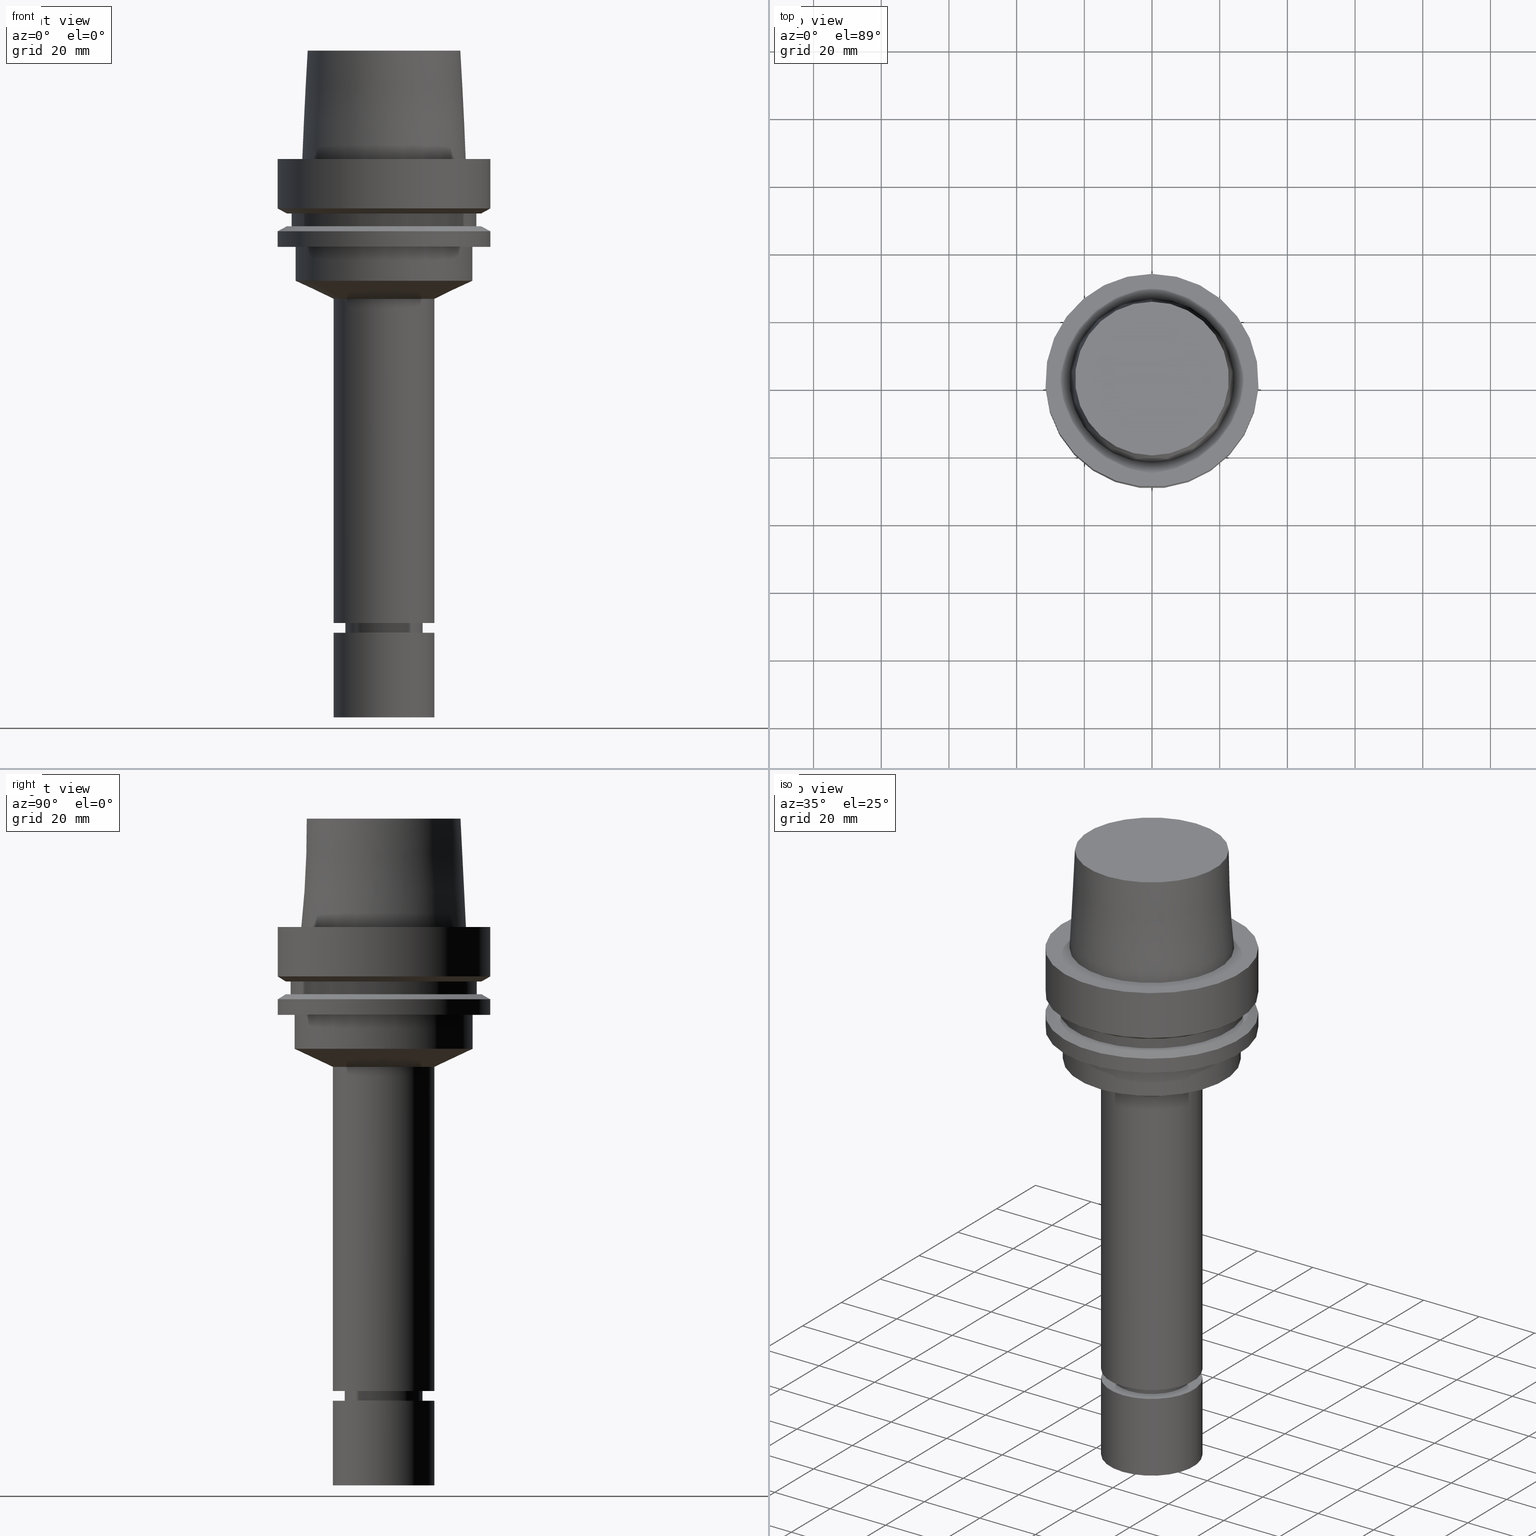
[diagram: canonical four-view strip — front | top / right | iso, engineering-drawing reading convention]
A machine part, canonical four-view strip (front | top / right | iso — engineering-drawing reading convention). The complete STEP part file that produces these views, byte-faithful:
ISO-10303-21;
HEADER;
FILE_DESCRIPTION((''),'1');
FILE_NAME('U:/Translate/02_3D_Field-HP\X2\FF71FF6FFF8CFF9F5916\X0\2013/02_Step_Field-HP\X2\FF71FF6FFF8CFF9F5916\X0\2013/HSK-A63-MEGAER16-165NL.stp','2016-06-21T23:59:58',(''),(''),'Spatial Interop R21 SP3','Kubotek KeyCreator 2011 V10.0.2 (22737)',' ');
FILE_SCHEMA(('automotive_design'));
ENDSEC;
DATA;
#1=MECHANICAL_DESIGN_GEOMETRIC_PRESENTATION_REPRESENTATION(' ',(#14,#15,#16,#17,#18,#19,#20,#21,#22,#23,#24,#25,#26,#27,#28,#29,#30,#31,#32,#33,#34,#35,#36,#37,#38,#39,#40,#41,#42,#43,#44,#45,#46,#47,#48,#49,#50,#51,#52,#53,#54,#55,#56,#57,#58,#59),#10);
#2=PRODUCT_DEFINITION_CONTEXT('',#60,'design');
#3=APPLICATION_PROTOCOL_DEFINITION('INTERNATIONAL STANDARD','automotive_design',1994,#60);
#4=PRODUCT_CATEGORY_RELATIONSHIP('NONE','NONE',#61,#62);
#5=SHAPE_DEFINITION_REPRESENTATION(#63,#64);
#6=PRODUCT_DEFINITION_CONTEXT('',#65,'design');
#7=APPLICATION_PROTOCOL_DEFINITION('INTERNATIONAL STANDARD','automotive_design',1994,#65);
#8=PRODUCT_CATEGORY_RELATIONSHIP('NONE','NONE',#66,#67);
#9=SHAPE_DEFINITION_REPRESENTATION(#68,#69);
#10= (GEOMETRIC_REPRESENTATION_CONTEXT(3)GLOBAL_UNCERTAINTY_ASSIGNED_CONTEXT((#72))GLOBAL_UNIT_ASSIGNED_CONTEXT((#74,#75,#76))REPRESENTATION_CONTEXT('NONE','WORKSPACE'));
#14=STYLED_ITEM('',(#78,#79),#80);
#15=STYLED_ITEM('',(#81,#82),#83);
#16=STYLED_ITEM('',(#84,#85),#86);
#17=STYLED_ITEM('',(#87,#88),#89);
#18=STYLED_ITEM('',(#90),#91);
#19=STYLED_ITEM('',(#92,#93),#94);
#20=STYLED_ITEM('',(#95,#96),#97);
#21=STYLED_ITEM('',(#98,#99),#100);
#22=STYLED_ITEM('',(#101,#102),#103);
#23=STYLED_ITEM('',(#104),#105);
#24=STYLED_ITEM('',(#106,#107),#108);
#25=STYLED_ITEM('',(#109),#110);
#26=STYLED_ITEM('',(#111,#112),#113);
#27=STYLED_ITEM('',(#114),#115);
#28=STYLED_ITEM('',(#116,#117),#118);
#29=STYLED_ITEM('',(#119,#120),#121);
#30=STYLED_ITEM('',(#122),#123);
#31=STYLED_ITEM('',(#124,#125),#126);
#32=STYLED_ITEM('',(#127),#128);
#33=STYLED_ITEM('',(#129),#130);
#34=STYLED_ITEM('',(#131),#132);
#35=STYLED_ITEM('',(#133,#134),#135);
#36=STYLED_ITEM('',(#136),#137);
#37=STYLED_ITEM('',(#138,#139),#140);
#38=STYLED_ITEM('',(#141,#142),#143);
#39=STYLED_ITEM('',(#144),#145);
#40=STYLED_ITEM('',(#146,#147),#148);
#41=STYLED_ITEM('',(#149,#150),#151);
#42=STYLED_ITEM('',(#152),#153);
#43=STYLED_ITEM('',(#154),#155);
#44=STYLED_ITEM('',(#156),#157);
#45=STYLED_ITEM('',(#158),#159);
#46=STYLED_ITEM('',(#160,#161),#162);
#47=STYLED_ITEM('',(#163),#164);
#48=STYLED_ITEM('',(#165),#166);
#49=STYLED_ITEM('',(#167,#168),#169);
#50=STYLED_ITEM('',(#170,#171),#172);
#51=STYLED_ITEM('',(#173),#174);
#52=STYLED_ITEM('',(#175),#176);
#53=STYLED_ITEM('',(#177),#178);
#54=STYLED_ITEM('',(#179,#180),#181);
#55=STYLED_ITEM('',(#182),#183);
#56=STYLED_ITEM('',(#184),#185);
#57=STYLED_ITEM('',(#186,#187),#188);
#58=STYLED_ITEM('',(#189,#190),#191);
#59=STYLED_ITEM('',(#192,#193),#194);
#60=APPLICATION_CONTEXT(' ');
#61=PRODUCT_CATEGORY('part','NONE');
#62=PRODUCT_RELATED_PRODUCT_CATEGORY('detail',' ',(#195));
#63=PRODUCT_DEFINITION_SHAPE('NONE','NONE',#196);
#64=ADVANCED_BREP_SHAPE_REPRESENTATION('Unnamed[1]',(#181,#197),#10);
#65=APPLICATION_CONTEXT(' ');
#66=PRODUCT_CATEGORY('part','NONE');
#67=PRODUCT_RELATED_PRODUCT_CATEGORY('detail',' ',(#198));
#68=PRODUCT_DEFINITION_SHAPE('NONE','NONE',#199);
#69=ADVANCED_BREP_SHAPE_REPRESENTATION('Unnamed[1]',(#94,#200),#10);
#72=UNCERTAINTY_MEASURE_WITH_UNIT(LENGTH_MEASURE(1.0E-006),#74,'','');
#74= (CONVERSION_BASED_UNIT('MILLIMETRE',#203)LENGTH_UNIT()NAMED_UNIT(#206));
#75= (NAMED_UNIT(#208)PLANE_ANGLE_UNIT()SI_UNIT($,.RADIAN.));
#76= (NAMED_UNIT(#208)SOLID_ANGLE_UNIT()SI_UNIT($,.STERADIAN.));
#78=PRESENTATION_STYLE_ASSIGNMENT((#214));
#79=PRESENTATION_STYLE_ASSIGNMENT((#215));
#80=ADVANCED_FACE('Unnamed[1]',(#216,#217),#218,.T.);
#81=PRESENTATION_STYLE_ASSIGNMENT((#219));
#82=PRESENTATION_STYLE_ASSIGNMENT((#220));
#83=ADVANCED_FACE('Unnamed[1]',(#221,#222),#223,.T.);
#84=PRESENTATION_STYLE_ASSIGNMENT((#224));
#85=PRESENTATION_STYLE_ASSIGNMENT((#225));
#86=ADVANCED_FACE('Unnamed[1]',(#226,#227),#228,.T.);
#87=PRESENTATION_STYLE_ASSIGNMENT((#229));
#88=PRESENTATION_STYLE_ASSIGNMENT((#230));
#89=ADVANCED_FACE('Unnamed[1]',(#231,#232),#233,.T.);
#90=PRESENTATION_STYLE_ASSIGNMENT((#234));
#91=EDGE_CURVE('Unnamed[1]',#235,#235,#236,.T.);
#92=PRESENTATION_STYLE_ASSIGNMENT((#237));
#93=PRESENTATION_STYLE_ASSIGNMENT((#238));
#94=MANIFOLD_SOLID_BREP('Unnamed[1]',#239);
#95=PRESENTATION_STYLE_ASSIGNMENT((#240));
#96=PRESENTATION_STYLE_ASSIGNMENT((#241));
#97=ADVANCED_FACE('Unnamed[1]',(#242,#243),#244,.T.);
#98=PRESENTATION_STYLE_ASSIGNMENT((#245));
#99=PRESENTATION_STYLE_ASSIGNMENT((#246));
#100=ADVANCED_FACE('Unnamed[1]',(#247,#248),#249,.T.);
#101=PRESENTATION_STYLE_ASSIGNMENT((#250));
#102=PRESENTATION_STYLE_ASSIGNMENT((#251));
#103=ADVANCED_FACE('Unnamed[1]',(#252,#253),#254,.T.);
#104=PRESENTATION_STYLE_ASSIGNMENT((#255));
#105=EDGE_CURVE('Unnamed[1]',#256,#256,#257,.T.);
#106=PRESENTATION_STYLE_ASSIGNMENT((#258));
#107=PRESENTATION_STYLE_ASSIGNMENT((#259));
#108=ADVANCED_FACE('Unnamed[1]',(#260,#261),#262,.T.);
#109=PRESENTATION_STYLE_ASSIGNMENT((#263));
#110=EDGE_CURVE('Unnamed[1]',#264,#264,#265,.T.);
#111=PRESENTATION_STYLE_ASSIGNMENT((#266));
#112=PRESENTATION_STYLE_ASSIGNMENT((#267));
#113=ADVANCED_FACE('Unnamed[1]',(#268),#269,.T.);
#114=PRESENTATION_STYLE_ASSIGNMENT((#270));
#115=EDGE_CURVE('Unnamed[1]',#271,#271,#272,.T.);
#116=PRESENTATION_STYLE_ASSIGNMENT((#273));
#117=PRESENTATION_STYLE_ASSIGNMENT((#274));
#118=ADVANCED_FACE('Unnamed[1]',(#275,#276),#277,.T.);
#119=PRESENTATION_STYLE_ASSIGNMENT((#278));
#120=PRESENTATION_STYLE_ASSIGNMENT((#279));
#121=ADVANCED_FACE('Unnamed[1]',(#280,#281),#282,.T.);
#122=PRESENTATION_STYLE_ASSIGNMENT((#283));
#123=EDGE_CURVE('Unnamed[1]',#284,#284,#285,.T.);
#124=PRESENTATION_STYLE_ASSIGNMENT((#286));
#125=PRESENTATION_STYLE_ASSIGNMENT((#287));
#126=ADVANCED_FACE('Unnamed[1]',(#288,#289),#290,.T.);
#127=PRESENTATION_STYLE_ASSIGNMENT((#291));
#128=EDGE_CURVE('Unnamed[1]',#292,#292,#293,.T.);
#129=PRESENTATION_STYLE_ASSIGNMENT((#294));
#130=EDGE_CURVE('Unnamed[1]',#295,#295,#296,.T.);
#131=PRESENTATION_STYLE_ASSIGNMENT((#297));
#132=EDGE_CURVE('Unnamed[1]',#298,#298,#299,.T.);
#133=PRESENTATION_STYLE_ASSIGNMENT((#300));
#134=PRESENTATION_STYLE_ASSIGNMENT((#301));
#135=ADVANCED_FACE('Unnamed[1]',(#302,#303),#304,.T.);
#136=PRESENTATION_STYLE_ASSIGNMENT((#305));
#137=EDGE_CURVE('Unnamed[1]',#306,#306,#307,.T.);
#138=PRESENTATION_STYLE_ASSIGNMENT((#308));
#139=PRESENTATION_STYLE_ASSIGNMENT((#309));
#140=ADVANCED_FACE('Unnamed[1]',(#310,#311),#312,.T.);
#141=PRESENTATION_STYLE_ASSIGNMENT((#313));
#142=PRESENTATION_STYLE_ASSIGNMENT((#314));
#143=ADVANCED_FACE('Unnamed[1]',(#315,#316),#317,.T.);
#144=PRESENTATION_STYLE_ASSIGNMENT((#318));
#145=EDGE_CURVE('Unnamed[1]',#319,#319,#320,.T.);
#146=PRESENTATION_STYLE_ASSIGNMENT((#321));
#147=PRESENTATION_STYLE_ASSIGNMENT((#322));
#148=ADVANCED_FACE('Unnamed[1]',(#323,#324),#325,.T.);
#149=PRESENTATION_STYLE_ASSIGNMENT((#326));
#150=PRESENTATION_STYLE_ASSIGNMENT((#327));
#151=ADVANCED_FACE('Unnamed[1]',(#328,#329),#330,.T.);
#152=PRESENTATION_STYLE_ASSIGNMENT((#331));
#153=EDGE_CURVE('Unnamed[1]',#332,#332,#333,.T.);
#154=PRESENTATION_STYLE_ASSIGNMENT((#334));
#155=EDGE_CURVE('Unnamed[1]',#335,#335,#336,.T.);
#156=PRESENTATION_STYLE_ASSIGNMENT((#337));
#157=EDGE_CURVE('Unnamed[1]',#338,#338,#339,.T.);
#158=PRESENTATION_STYLE_ASSIGNMENT((#340));
#159=EDGE_CURVE('Unnamed[1]',#341,#341,#342,.T.);
#160=PRESENTATION_STYLE_ASSIGNMENT((#343));
#161=PRESENTATION_STYLE_ASSIGNMENT((#344));
#162=ADVANCED_FACE('Unnamed[1]',(#345),#346,.T.);
#163=PRESENTATION_STYLE_ASSIGNMENT((#347));
#164=EDGE_CURVE('Unnamed[1]',#348,#348,#349,.T.);
#165=PRESENTATION_STYLE_ASSIGNMENT((#350));
#166=EDGE_CURVE('Unnamed[1]',#351,#351,#352,.T.);
#167=PRESENTATION_STYLE_ASSIGNMENT((#353));
#168=PRESENTATION_STYLE_ASSIGNMENT((#354));
#169=ADVANCED_FACE('Unnamed[1]',(#355),#356,.T.);
#170=PRESENTATION_STYLE_ASSIGNMENT((#357));
#171=PRESENTATION_STYLE_ASSIGNMENT((#358));
#172=ADVANCED_FACE('Unnamed[1]',(#359,#360),#361,.T.);
#173=PRESENTATION_STYLE_ASSIGNMENT((#362));
#174=EDGE_CURVE('Unnamed[1]',#363,#363,#364,.T.);
#175=PRESENTATION_STYLE_ASSIGNMENT((#365));
#176=EDGE_CURVE('Unnamed[1]',#366,#366,#367,.T.);
#177=PRESENTATION_STYLE_ASSIGNMENT((#368));
#178=EDGE_CURVE('Unnamed[1]',#369,#369,#370,.T.);
#179=PRESENTATION_STYLE_ASSIGNMENT((#371));
#180=PRESENTATION_STYLE_ASSIGNMENT((#372));
#181=MANIFOLD_SOLID_BREP('Unnamed[1]',#373);
#182=PRESENTATION_STYLE_ASSIGNMENT((#374));
#183=EDGE_CURVE('Unnamed[1]',#375,#375,#376,.T.);
#184=PRESENTATION_STYLE_ASSIGNMENT((#377));
#185=EDGE_CURVE('Unnamed[1]',#378,#378,#379,.T.);
#186=PRESENTATION_STYLE_ASSIGNMENT((#380));
#187=PRESENTATION_STYLE_ASSIGNMENT((#381));
#188=ADVANCED_FACE('Unnamed[1]',(#382),#383,.T.);
#189=PRESENTATION_STYLE_ASSIGNMENT((#384));
#190=PRESENTATION_STYLE_ASSIGNMENT((#385));
#191=ADVANCED_FACE('Unnamed[1]',(#386,#387),#388,.T.);
#192=PRESENTATION_STYLE_ASSIGNMENT((#389));
#193=PRESENTATION_STYLE_ASSIGNMENT((#390));
#194=ADVANCED_FACE('Unnamed[1]',(#391,#392),#393,.T.);
#195=PRODUCT('Unnamed[1]','Unnamed[1]','PART-Unnamed[1]-DESC',(#394));
#196=PRODUCT_DEFINITION('NONE','NONE',#395,#2);
#197=AXIS2_PLACEMENT_3D('',#396,#397,#398);
#198=PRODUCT('Unnamed[1]','Unnamed[1]','PART-Unnamed[1]-DESC',(#399));
#199=PRODUCT_DEFINITION('NONE','NONE',#400,#6);
#200=AXIS2_PLACEMENT_3D('',#401,#402,#403);
#203=LENGTH_MEASURE_WITH_UNIT(LENGTH_MEASURE(1.0),#404);
#206=DIMENSIONAL_EXPONENTS(1.0,0.0,0.0,0.0,0.0,0.0,0.0);
#208=DIMENSIONAL_EXPONENTS(0.0,0.0,0.0,0.0,0.0,0.0,0.0);
#214=SURFACE_STYLE_USAGE(.BOTH.,#405);
#215=CURVE_STYLE('',#406,POSITIVE_LENGTH_MEASURE(1000.0),#407);
#216=FACE_BOUND('',#408,.T.);
#217=FACE_BOUND('',#409,.T.);
#218=CONICAL_SURFACE('',#410,30.1987976320959,1.04719755119657);
#219=SURFACE_STYLE_USAGE(.BOTH.,#411);
#220=CURVE_STYLE('',#412,POSITIVE_LENGTH_MEASURE(1000.0),#413);
#221=FACE_OUTER_BOUND('',#414,.T.);
#222=FACE_BOUND('',#415,.T.);
#223=PLANE('',#416);
#224=SURFACE_STYLE_USAGE(.BOTH.,#417);
#225=CURVE_STYLE('',#418,POSITIVE_LENGTH_MEASURE(1000.0),#419);
#226=FACE_BOUND('',#420,.T.);
#227=FACE_BOUND('',#421,.T.);
#228=CONICAL_SURFACE('',#422,30.1987976320959,1.04719755119657);
#229=SURFACE_STYLE_USAGE(.BOTH.,#423);
#230=CURVE_STYLE('',#424,POSITIVE_LENGTH_MEASURE(1000.0),#425);
#231=FACE_BOUND('',#426,.T.);
#232=FACE_BOUND('',#427,.T.);
#233=CYLINDRICAL_SURFACE('',#428,15.0);
#234=CURVE_STYLE('',#429,POSITIVE_LENGTH_MEASURE(1000.0),#430);
#235=VERTEX_POINT('',#431);
#236=CIRCLE('',#432,11.0000000000003);
#237=SURFACE_STYLE_USAGE(.BOTH.,#433);
#238=CURVE_STYLE('',#434,POSITIVE_LENGTH_MEASURE(1000.0),#435);
#239=CLOSED_SHELL('',(#162,#169,#89));
#240=SURFACE_STYLE_USAGE(.BOTH.,#436);
#241=CURVE_STYLE('',#437,POSITIVE_LENGTH_MEASURE(1000.0),#438);
#242=FACE_BOUND('',#439,.T.);
#243=FACE_BOUND('',#440,.T.);
#244=CYLINDRICAL_SURFACE('',#441,26.3);
#245=SURFACE_STYLE_USAGE(.BOTH.,#442);
#246=CURVE_STYLE('',#443,POSITIVE_LENGTH_MEASURE(1000.0),#444);
#247=FACE_BOUND('',#445,.T.);
#248=FACE_OUTER_BOUND('',#446,.T.);
#249=PLANE('',#447);
#250=SURFACE_STYLE_USAGE(.BOTH.,#448);
#251=CURVE_STYLE('',#449,POSITIVE_LENGTH_MEASURE(1000.0),#450);
#252=FACE_BOUND('',#451,.T.);
#253=FACE_BOUND('',#452,.T.);
#254=CONICAL_SURFACE('',#453,10.4499999999999,0.523598775598217);
#255=CURVE_STYLE('',#454,POSITIVE_LENGTH_MEASURE(1000.0),#455);
#256=VERTEX_POINT('',#456);
#257=CIRCLE('',#457,22.715);
#258=SURFACE_STYLE_USAGE(.BOTH.,#458);
#259=CURVE_STYLE('',#459,POSITIVE_LENGTH_MEASURE(1000.0),#460);
#260=FACE_BOUND('',#461,.T.);
#261=FACE_BOUND('',#462,.T.);
#262=CYLINDRICAL_SURFACE('',#463,31.4999999999999);
#263=CURVE_STYLE('',#464,POSITIVE_LENGTH_MEASURE(1000.0),#465);
#264=VERTEX_POINT('',#466);
#265=CIRCLE('',#467,26.3);
#266=SURFACE_STYLE_USAGE(.BOTH.,#468);
#267=CURVE_STYLE('',#469,POSITIVE_LENGTH_MEASURE(1000.0),#470);
#268=FACE_OUTER_BOUND('',#471,.T.);
#269=PLANE('',#472);
#270=CURVE_STYLE('',#473,POSITIVE_LENGTH_MEASURE(1000.0),#474);
#271=VERTEX_POINT('',#475);
#272=CIRCLE('',#476,15.0000000000001);
#273=SURFACE_STYLE_USAGE(.BOTH.,#477);
#274=CURVE_STYLE('',#478,POSITIVE_LENGTH_MEASURE(1000.0),#479);
#275=FACE_BOUND('',#480,.T.);
#276=FACE_BOUND('',#481,.T.);
#277=CONICAL_SURFACE('',#482,20.65,1.130073120606);
#278=SURFACE_STYLE_USAGE(.BOTH.,#483);
#279=CURVE_STYLE('',#484,POSITIVE_LENGTH_MEASURE(1000.0),#485);
#280=FACE_BOUND('',#486,.T.);
#281=FACE_BOUND('',#487,.T.);
#282=CYLINDRICAL_SURFACE('',#488,27.4999999999994);
#283=CURVE_STYLE('',#489,POSITIVE_LENGTH_MEASURE(1000.0),#490);
#284=VERTEX_POINT('',#491);
#285=CIRCLE('',#492,11.4999999999907);
#286=SURFACE_STYLE_USAGE(.BOTH.,#493);
#287=CURVE_STYLE('',#494,POSITIVE_LENGTH_MEASURE(1000.0),#495);
#288=FACE_BOUND('',#496,.T.);
#289=FACE_BOUND('',#497,.T.);
#290=CYLINDRICAL_SURFACE('',#498,11.0000000000001);
#291=CURVE_STYLE('',#499,POSITIVE_LENGTH_MEASURE(1000.0),#500);
#292=VERTEX_POINT('',#501);
#293=CIRCLE('',#502,31.5000000000001);
#294=CURVE_STYLE('',#503,POSITIVE_LENGTH_MEASURE(1000.0),#504);
#295=VERTEX_POINT('',#505);
#296=CIRCLE('',#506,31.4999999999998);
#297=CURVE_STYLE('',#507,POSITIVE_LENGTH_MEASURE(1000.0),#508);
#298=VERTEX_POINT('',#509);
#299=CIRCLE('',#510,28.8975952641919);
#300=SURFACE_STYLE_USAGE(.BOTH.,#511);
#301=CURVE_STYLE('',#512,POSITIVE_LENGTH_MEASURE(1000.0),#513);
#302=FACE_BOUND('',#514,.T.);
#303=FACE_BOUND('',#515,.T.);
#304=CONICAL_SURFACE('',#516,23.515,0.0499583957219433);
#305=CURVE_STYLE('',#517,POSITIVE_LENGTH_MEASURE(1000.0),#518);
#306=VERTEX_POINT('',#519);
#307=CIRCLE('',#520,31.5);
#308=SURFACE_STYLE_USAGE(.BOTH.,#521);
#309=CURVE_STYLE('',#522,POSITIVE_LENGTH_MEASURE(1000.0),#523);
#310=FACE_OUTER_BOUND('',#524,.T.);
#311=FACE_BOUND('',#525,.T.);
#312=PLANE('',#526);
#313=SURFACE_STYLE_USAGE(.BOTH.,#527);
#314=CURVE_STYLE('',#528,POSITIVE_LENGTH_MEASURE(1000.0),#529);
#315=FACE_BOUND('',#530,.T.);
#316=FACE_BOUND('',#531,.T.);
#317=CYLINDRICAL_SURFACE('',#532,15.0);
#318=CURVE_STYLE('',#533,POSITIVE_LENGTH_MEASURE(1000.0),#534);
#319=VERTEX_POINT('',#535);
#320=CIRCLE('',#536,26.3);
#321=SURFACE_STYLE_USAGE(.BOTH.,#537);
#322=CURVE_STYLE('',#538,POSITIVE_LENGTH_MEASURE(1000.0),#539);
#323=FACE_OUTER_BOUND('',#540,.T.);
#324=FACE_BOUND('',#541,.T.);
#325=PLANE('',#542);
#326=SURFACE_STYLE_USAGE(.BOTH.,#543);
#327=CURVE_STYLE('',#544,POSITIVE_LENGTH_MEASURE(1000.0),#545);
#328=FACE_BOUND('',#546,.T.);
#329=FACE_BOUND('',#547,.T.);
#330=CYLINDRICAL_SURFACE('',#548,31.5);
#331=CURVE_STYLE('',#549,POSITIVE_LENGTH_MEASURE(1000.0),#550);
#332=VERTEX_POINT('',#551);
#333=CIRCLE('',#552,9.89999999999962);
#334=CURVE_STYLE('',#553,POSITIVE_LENGTH_MEASURE(1000.0),#554);
#335=VERTEX_POINT('',#555);
#336=CIRCLE('',#556,11.5000000000021);
#337=CURVE_STYLE('',#557,POSITIVE_LENGTH_MEASURE(1000.0),#558);
#338=VERTEX_POINT('',#559);
#339=CIRCLE('',#560,28.8975952641919);
#340=CURVE_STYLE('',#561,POSITIVE_LENGTH_MEASURE(1000.0),#562);
#341=VERTEX_POINT('',#563);
#342=CIRCLE('',#564,27.5);
#343=SURFACE_STYLE_USAGE(.BOTH.,#565);
#344=CURVE_STYLE('',#566,POSITIVE_LENGTH_MEASURE(1000.0),#567);
#345=FACE_OUTER_BOUND('',#568,.T.);
#346=PLANE('',#569);
#347=CURVE_STYLE('',#570,POSITIVE_LENGTH_MEASURE(1000.0),#571);
#348=VERTEX_POINT('',#572);
#349=CIRCLE('',#573,15.0);
#350=CURVE_STYLE('',#574,POSITIVE_LENGTH_MEASURE(1000.0),#575);
#351=VERTEX_POINT('',#576);
#352=CIRCLE('',#577,10.9999999999999);
#353=SURFACE_STYLE_USAGE(.BOTH.,#578);
#354=CURVE_STYLE('',#579,POSITIVE_LENGTH_MEASURE(1000.0),#580);
#355=FACE_OUTER_BOUND('',#581,.T.);
#356=PLANE('',#582);
#357=SURFACE_STYLE_USAGE(.BOTH.,#583);
#358=CURVE_STYLE('',#584,POSITIVE_LENGTH_MEASURE(1000.0),#585);
#359=FACE_BOUND('',#586,.T.);
#360=FACE_BOUND('',#587,.T.);
#361=CYLINDRICAL_SURFACE('',#588,11.4999999999964);
#362=CURVE_STYLE('',#589,POSITIVE_LENGTH_MEASURE(1000.0),#590);
#363=VERTEX_POINT('',#591);
#364=CIRCLE('',#592,15.0);
#365=CURVE_STYLE('',#593,POSITIVE_LENGTH_MEASURE(1000.0),#594);
#366=VERTEX_POINT('',#595);
#367=CIRCLE('',#596,27.4999999999989);
#368=CURVE_STYLE('',#597,POSITIVE_LENGTH_MEASURE(1000.0),#598);
#369=VERTEX_POINT('',#599);
#370=CIRCLE('',#600,24.315);
#371=SURFACE_STYLE_USAGE(.BOTH.,#601);
#372=CURVE_STYLE('',#602,POSITIVE_LENGTH_MEASURE(1000.0),#603);
#373=CLOSED_SHELL('',(#188,#103,#126,#191,#172,#148,#143,#118,#97,#83,#108,#86,#194,#121,#140,#80,#151,#100,#135,#113));
#374=CURVE_STYLE('',#604,POSITIVE_LENGTH_MEASURE(1000.0),#605);
#375=VERTEX_POINT('',#606);
#376=CIRCLE('',#607,15.0);
#377=CURVE_STYLE('',#608,POSITIVE_LENGTH_MEASURE(1000.0),#609);
#378=VERTEX_POINT('',#610);
#379=CIRCLE('',#611,31.5);
#380=SURFACE_STYLE_USAGE(.BOTH.,#612);
#381=CURVE_STYLE('',#613,POSITIVE_LENGTH_MEASURE(1000.0),#614);
#382=FACE_OUTER_BOUND('',#615,.T.);
#383=PLANE('',#616);
#384=SURFACE_STYLE_USAGE(.BOTH.,#617);
#385=CURVE_STYLE('',#618,POSITIVE_LENGTH_MEASURE(1000.0),#619);
#386=FACE_BOUND('',#620,.T.);
#387=FACE_BOUND('',#621,.T.);
#388=CONICAL_SURFACE('',#622,11.250000000001,0.766162649701789);
#389=SURFACE_STYLE_USAGE(.BOTH.,#623);
#390=CURVE_STYLE('',#624,POSITIVE_LENGTH_MEASURE(1000.0),#625);
#391=FACE_BOUND('',#626,.T.);
#392=FACE_OUTER_BOUND('',#627,.T.);
#393=PLANE('',#628);
#394=PRODUCT_CONTEXT('',#60,'mechanical');
#395=PRODUCT_DEFINITION_FORMATION_WITH_SPECIFIED_SOURCE(' ','NONE',#195,.NOT_KNOWN.);
#396=CARTESIAN_POINT('',(0.0,0.0,0.0));
#397=DIRECTION('',(0.0,0.0,1.0));
#398=DIRECTION('',(1.0,0.0,0.0));
#399=PRODUCT_CONTEXT('',#65,'mechanical');
#400=PRODUCT_DEFINITION_FORMATION_WITH_SPECIFIED_SOURCE(' ','NONE',#198,.NOT_KNOWN.);
#401=CARTESIAN_POINT('',(0.0,0.0,0.0));
#402=DIRECTION('',(0.0,0.0,1.0));
#403=DIRECTION('',(1.0,0.0,0.0));
#404= (NAMED_UNIT(#206)LENGTH_UNIT()SI_UNIT(.MILLI.,.METRE.));
#405=SURFACE_SIDE_STYLE('',(#630));
#406=DRAUGHTING_PRE_DEFINED_CURVE_FONT('continuous');
#407=COLOUR_RGB('',0.0,1.0,0.0);
#408=EDGE_LOOP('',(#631));
#409=EDGE_LOOP('',(#632));
#410=AXIS2_PLACEMENT_3D('',#633,#634,#635);
#411=SURFACE_SIDE_STYLE('',(#636));
#412=DRAUGHTING_PRE_DEFINED_CURVE_FONT('continuous');
#413=COLOUR_RGB('',0.0,1.0,0.0);
#414=EDGE_LOOP('',(#637));
#415=EDGE_LOOP('',(#638));
#416=AXIS2_PLACEMENT_3D('',#639,#640,#641);
#417=SURFACE_SIDE_STYLE('',(#642));
#418=DRAUGHTING_PRE_DEFINED_CURVE_FONT('continuous');
#419=COLOUR_RGB('',0.0,1.0,0.0);
#420=EDGE_LOOP('',(#643));
#421=EDGE_LOOP('',(#644));
#422=AXIS2_PLACEMENT_3D('',#645,#646,#647);
#423=SURFACE_SIDE_STYLE('',(#648));
#424=DRAUGHTING_PRE_DEFINED_CURVE_FONT('continuous');
#425=COLOUR_RGB('',0.0,1.0,0.0);
#426=EDGE_LOOP('',(#649));
#427=EDGE_LOOP('',(#650));
#428=AXIS2_PLACEMENT_3D('',#651,#652,#653);
#429=DRAUGHTING_PRE_DEFINED_CURVE_FONT('continuous');
#430=COLOUR_RGB('',0.0,1.0,0.0);
#431=CARTESIAN_POINT('',(9.44782822508095E-015,11.0000000000003,-154.294744111672));
#432=AXIS2_PLACEMENT_3D('',#654,#655,#656);
#433=SURFACE_SIDE_STYLE('',(#657));
#434=DRAUGHTING_PRE_DEFINED_CURVE_FONT('continuous');
#435=COLOUR_RGB('',0.0,1.0,0.0);
#436=SURFACE_SIDE_STYLE('',(#658));
#437=DRAUGHTING_PRE_DEFINED_CURVE_FONT('continuous');
#438=COLOUR_RGB('',0.0,1.0,0.0);
#439=EDGE_LOOP('',(#659));
#440=EDGE_LOOP('',(#660));
#441=AXIS2_PLACEMENT_3D('',#661,#662,#663);
#442=SURFACE_SIDE_STYLE('',(#664));
#443=DRAUGHTING_PRE_DEFINED_CURVE_FONT('continuous');
#444=COLOUR_RGB('',0.0,1.0,0.0);
#445=EDGE_LOOP('',(#665));
#446=EDGE_LOOP('',(#666));
#447=AXIS2_PLACEMENT_3D('',#667,#668,#669);
#448=SURFACE_SIDE_STYLE('',(#670));
#449=DRAUGHTING_PRE_DEFINED_CURVE_FONT('continuous');
#450=COLOUR_RGB('',0.0,1.0,0.0);
#451=EDGE_LOOP('',(#671));
#452=EDGE_LOOP('',(#672));
#453=AXIS2_PLACEMENT_3D('',#673,#674,#675);
#454=DRAUGHTING_PRE_DEFINED_CURVE_FONT('continuous');
#455=COLOUR_RGB('',0.0,1.0,0.0);
#456=CARTESIAN_POINT('',(-1.95943487863576E-015,22.715,32.0));
#457=AXIS2_PLACEMENT_3D('',#676,#677,#678);
#458=SURFACE_SIDE_STYLE('',(#679));
#459=DRAUGHTING_PRE_DEFINED_CURVE_FONT('continuous');
#460=COLOUR_RGB('',0.0,1.0,0.0);
#461=EDGE_LOOP('',(#680));
#462=EDGE_LOOP('',(#681));
#463=AXIS2_PLACEMENT_3D('',#682,#683,#684);
#464=DRAUGHTING_PRE_DEFINED_CURVE_FONT('continuous');
#465=COLOUR_RGB('',0.0,1.0,0.0);
#466=CARTESIAN_POINT('',(2.20436423866976E-015,26.3,-36.0000000033401));
#467=AXIS2_PLACEMENT_3D('',#685,#686,#687);
#468=SURFACE_SIDE_STYLE('',(#688));
#469=DRAUGHTING_PRE_DEFINED_CURVE_FONT('continuous');
#470=COLOUR_RGB('',0.0,1.0,0.0);
#471=EDGE_LOOP('',(#689));
#472=AXIS2_PLACEMENT_3D('',#690,#691,#692);
#473=DRAUGHTING_PRE_DEFINED_CURVE_FONT('continuous');
#474=COLOUR_RGB('',0.0,1.0,0.0);
#475=CARTESIAN_POINT('',(8.57252759403147E-015,15.0000000000001,-140.0));
#476=AXIS2_PLACEMENT_3D('',#693,#694,#695);
#477=SURFACE_SIDE_STYLE('',(#696));
#478=DRAUGHTING_PRE_DEFINED_CURVE_FONT('continuous');
#479=COLOUR_RGB('',0.0,1.0,0.0);
#480=EDGE_LOOP('',(#697));
#481=EDGE_LOOP('',(#698));
#482=AXIS2_PLACEMENT_3D('',#699,#700,#701);
#483=SURFACE_SIDE_STYLE('',(#702));
#484=DRAUGHTING_PRE_DEFINED_CURVE_FONT('continuous');
#485=COLOUR_RGB('',0.0,1.0,0.0);
#486=EDGE_LOOP('',(#703));
#487=EDGE_LOOP('',(#704));
#488=AXIS2_PLACEMENT_3D('',#705,#706,#707);
#489=DRAUGHTING_PRE_DEFINED_CURVE_FONT('continuous');
#490=COLOUR_RGB('',0.0,1.0,0.0);
#491=CARTESIAN_POINT('',(8.39495380815511E-015,11.4999999999907,-137.1));
#492=AXIS2_PLACEMENT_3D('',#708,#709,#710);
#493=SURFACE_SIDE_STYLE('',(#711));
#494=DRAUGHTING_PRE_DEFINED_CURVE_FONT('continuous');
#495=COLOUR_RGB('',0.0,1.0,0.0);
#496=EDGE_LOOP('',(#712));
#497=EDGE_LOOP('',(#713));
#498=AXIS2_PLACEMENT_3D('',#714,#715,#716);
#499=DRAUGHTING_PRE_DEFINED_CURVE_FONT('continuous');
#500=COLOUR_RGB('',0.0,1.0,0.0);
#501=CARTESIAN_POINT('',(-3.88267476788467E-031,31.5000000000001,3.85763741731417E-015));
#502=AXIS2_PLACEMENT_3D('',#717,#718,#719);
#503=DRAUGHTING_PRE_DEFINED_CURVE_FONT('continuous');
#504=COLOUR_RGB('',0.0,1.0,0.0);
#505=CARTESIAN_POINT('',(1.59204083889155E-015,31.4999999999998,-25.9999999999999));
#506=AXIS2_PLACEMENT_3D('',#720,#721,#722);
#507=DRAUGHTING_PRE_DEFINED_CURVE_FONT('continuous');
#508=COLOUR_RGB('',0.0,1.0,0.0);
#509=CARTESIAN_POINT('',(9.87371481812551E-016,28.8975952641919,-16.125));
#510=AXIS2_PLACEMENT_3D('',#723,#724,#725);
#511=SURFACE_SIDE_STYLE('',(#726));
#512=DRAUGHTING_PRE_DEFINED_CURVE_FONT('continuous');
#513=COLOUR_RGB('',0.0,1.0,0.0);
#514=EDGE_LOOP('',(#727));
#515=EDGE_LOOP('',(#728));
#516=AXIS2_PLACEMENT_3D('',#729,#730,#731);
#517=DRAUGHTING_PRE_DEFINED_CURVE_FONT('continuous');
#518=COLOUR_RGB('',0.0,1.0,0.0);
#519=CARTESIAN_POINT('',(1.30899429078397E-015,31.5,-21.3774990747592));
#520=AXIS2_PLACEMENT_3D('',#732,#733,#734);
#521=SURFACE_SIDE_STYLE('',(#735));
#522=DRAUGHTING_PRE_DEFINED_CURVE_FONT('continuous');
#523=COLOUR_RGB('',0.0,1.0,0.0);
#524=EDGE_LOOP('',(#736));
#525=EDGE_LOOP('',(#737));
#526=AXIS2_PLACEMENT_3D('',#738,#739,#740);
#527=SURFACE_SIDE_STYLE('',(#741));
#528=DRAUGHTING_PRE_DEFINED_CURVE_FONT('continuous');
#529=COLOUR_RGB('',0.0,1.0,0.0);
#530=EDGE_LOOP('',(#742));
#531=EDGE_LOOP('',(#743));
#532=AXIS2_PLACEMENT_3D('',#744,#745,#746);
#533=DRAUGHTING_PRE_DEFINED_CURVE_FONT('continuous');
#534=COLOUR_RGB('',0.0,1.0,0.0);
#535=CARTESIAN_POINT('',(1.59204083889154E-015,26.3,-25.9999999999997));
#536=AXIS2_PLACEMENT_3D('',#747,#748,#749);
#537=SURFACE_SIDE_STYLE('',(#750));
#538=DRAUGHTING_PRE_DEFINED_CURVE_FONT('continuous');
#539=COLOUR_RGB('',0.0,1.0,0.0);
#540=EDGE_LOOP('',(#751));
#541=EDGE_LOOP('',(#752));
#542=AXIS2_PLACEMENT_3D('',#753,#754,#755);
#543=SURFACE_SIDE_STYLE('',(#756));
#544=DRAUGHTING_PRE_DEFINED_CURVE_FONT('continuous');
#545=COLOUR_RGB('',0.0,1.0,0.0);
#546=EDGE_LOOP('',(#757));
#547=EDGE_LOOP('',(#758));
#548=AXIS2_PLACEMENT_3D('',#759,#760,#761);
#549=DRAUGHTING_PRE_DEFINED_CURVE_FONT('continuous');
#550=COLOUR_RGB('',0.0,1.0,0.0);
#551=CARTESIAN_POINT('',(9.56449150134077E-015,9.89999999999964,-156.199999999999));
#552=AXIS2_PLACEMENT_3D('',#762,#763,#764);
#553=DRAUGHTING_PRE_DEFINED_CURVE_FONT('continuous');
#554=COLOUR_RGB('',0.0,1.0,0.0);
#555=CARTESIAN_POINT('',(8.75079482791645E-015,11.5000000000021,-142.911324865408));
#556=AXIS2_PLACEMENT_3D('',#765,#766,#767);
#557=DRAUGHTING_PRE_DEFINED_CURVE_FONT('continuous');
#558=COLOUR_RGB('',0.0,1.0,0.0);
#559=CARTESIAN_POINT('',(1.21699275665268E-015,28.8975952641919,-19.875));
#560=AXIS2_PLACEMENT_3D('',#768,#769,#770);
#561=DRAUGHTING_PRE_DEFINED_CURVE_FONT('continuous');
#562=COLOUR_RGB('',0.0,1.0,0.0);
#563=CARTESIAN_POINT('',(9.87371481812537E-016,27.5,-16.1249999999997));
#564=AXIS2_PLACEMENT_3D('',#771,#772,#773);
#565=SURFACE_SIDE_STYLE('',(#774));
#566=DRAUGHTING_PRE_DEFINED_CURVE_FONT('continuous');
#567=COLOUR_RGB('',0.0,1.0,0.0);
#568=EDGE_LOOP('',(#775));
#569=AXIS2_PLACEMENT_3D('',#776,#777,#778);
#570=DRAUGHTING_PRE_DEFINED_CURVE_FONT('continuous');
#571=COLOUR_RGB('',0.0,1.0,0.0);
#572=CARTESIAN_POINT('',(1.01033360929657E-014,15.0,-165.0));
#573=AXIS2_PLACEMENT_3D('',#779,#780,#781);
#574=DRAUGHTING_PRE_DEFINED_CURVE_FONT('continuous');
#575=COLOUR_RGB('',0.0,1.0,0.0);
#576=CARTESIAN_POINT('',(8.78261208507782E-015,10.9999999999999,-143.430940107672));
#577=AXIS2_PLACEMENT_3D('',#782,#783,#784);
#578=SURFACE_SIDE_STYLE('',(#785));
#579=DRAUGHTING_PRE_DEFINED_CURVE_FONT('continuous');
#580=COLOUR_RGB('',0.0,1.0,0.0);
#581=EDGE_LOOP('',(#786));
#582=AXIS2_PLACEMENT_3D('',#787,#788,#789);
#583=SURFACE_SIDE_STYLE('',(#790));
#584=DRAUGHTING_PRE_DEFINED_CURVE_FONT('continuous');
#585=COLOUR_RGB('',0.0,1.0,0.0);
#586=EDGE_LOOP('',(#791));
#587=EDGE_LOOP('',(#792));
#588=AXIS2_PLACEMENT_3D('',#793,#794,#795);
#589=DRAUGHTING_PRE_DEFINED_CURVE_FONT('continuous');
#590=COLOUR_RGB('',0.0,1.0,0.0);
#591=CARTESIAN_POINT('',(8.39495380815506E-015,15.0,-137.099999999999));
#592=AXIS2_PLACEMENT_3D('',#796,#797,#798);
#593=DRAUGHTING_PRE_DEFINED_CURVE_FONT('continuous');
#594=COLOUR_RGB('',0.0,1.0,0.0);
#595=CARTESIAN_POINT('',(1.21699275665276E-015,27.4999999999989,-19.8750000000013));
#596=AXIS2_PLACEMENT_3D('',#799,#800,#801);
#597=DRAUGHTING_PRE_DEFINED_CURVE_FONT('continuous');
#598=COLOUR_RGB('',0.0,1.0,0.0);
#599=CARTESIAN_POINT('',(-2.99705514225764E-031,24.315,2.97772869212679E-015));
#600=AXIS2_PLACEMENT_3D('',#802,#803,#804);
#601=SURFACE_SIDE_STYLE('',(#805));
#602=DRAUGHTING_PRE_DEFINED_CURVE_FONT('continuous');
#603=COLOUR_RGB('',0.0,1.0,0.0);
#604=DRAUGHTING_PRE_DEFINED_CURVE_FONT('continuous');
#605=COLOUR_RGB('',0.0,1.0,0.0);
#606=CARTESIAN_POINT('',(2.53072078279922E-015,15.0,-41.32980684));
#607=AXIS2_PLACEMENT_3D('',#806,#807,#808);
#608=DRAUGHTING_PRE_DEFINED_CURVE_FONT('continuous');
#609=COLOUR_RGB('',0.0,1.0,0.0);
#610=CARTESIAN_POINT('',(8.95369947681261E-016,31.5,-14.6225009252407));
#611=AXIS2_PLACEMENT_3D('',#809,#810,#811);
#612=SURFACE_SIDE_STYLE('',(#812));
#613=DRAUGHTING_PRE_DEFINED_CURVE_FONT('continuous');
#614=COLOUR_RGB('',0.0,1.0,0.0);
#615=EDGE_LOOP('',(#813));
#616=AXIS2_PLACEMENT_3D('',#814,#815,#816);
#617=SURFACE_SIDE_STYLE('',(#817));
#618=DRAUGHTING_PRE_DEFINED_CURVE_FONT('continuous');
#619=COLOUR_RGB('',0.0,1.0,0.0);
#620=EDGE_LOOP('',(#818));
#621=EDGE_LOOP('',(#819));
#622=AXIS2_PLACEMENT_3D('',#820,#821,#822);
#623=SURFACE_SIDE_STYLE('',(#823));
#624=DRAUGHTING_PRE_DEFINED_CURVE_FONT('continuous');
#625=COLOUR_RGB('',0.0,1.0,0.0);
#626=EDGE_LOOP('',(#824));
#627=EDGE_LOOP('',(#825));
#628=AXIS2_PLACEMENT_3D('',#826,#827,#828);
#630=SURFACE_STYLE_FILL_AREA(#829);
#631=ORIENTED_EDGE('',*,*,#185,.F.);
#632=ORIENTED_EDGE('',*,*,#132,.T.);
#633=CARTESIAN_POINT('',(9.41370714746907E-016,1.88274142949381E-015,-15.3737504626203));
#634=DIRECTION('',(-6.12323399573677E-017,-1.22464679914735E-016,1.0));
#635=DIRECTION('',(-1.23259516440783E-032,1.0,1.22464679914735E-016));
#636=SURFACE_STYLE_FILL_AREA(#830);
#637=ORIENTED_EDGE('',*,*,#130,.F.);
#638=ORIENTED_EDGE('',*,*,#145,.T.);
#639=CARTESIAN_POINT('',(1.59204083889155E-015,28.8999999999999,-25.9999999999998));
#640=DIRECTION('',(6.12323399573677E-017,-4.01871712910923E-014,-1.0));
#641=DIRECTION('',(-2.45592738169036E-030,-1.0,4.01871712910923E-014));
#642=SURFACE_STYLE_FILL_AREA(#831);
#643=ORIENTED_EDGE('',*,*,#157,.F.);
#644=ORIENTED_EDGE('',*,*,#137,.T.);
#645=CARTESIAN_POINT('',(1.26299352371833E-015,2.52598704743665E-015,-20.6262495373796));
#646=DIRECTION('',(6.12323399573677E-017,1.22464679914735E-016,-1.0));
#647=DIRECTION('',(-1.23259516440783E-032,1.0,1.22464679914735E-016));
#648=SURFACE_STYLE_FILL_AREA(#832);
#649=ORIENTED_EDGE('',*,*,#164,.F.);
#650=ORIENTED_EDGE('',*,*,#115,.T.);
#651=CARTESIAN_POINT('',(9.33793184349857E-015,1.86758636869971E-014,-152.5));
#652=DIRECTION('',(6.12323399573677E-017,1.22464679914735E-016,-1.0));
#653=DIRECTION('',(-1.23259516440783E-032,1.0,1.22464679914735E-016));
#654=CARTESIAN_POINT('',(9.44782822508095E-015,1.88956564501619E-014,-154.294744111672));
#655=DIRECTION('',(-6.12323399573676E-017,-1.22464679914735E-016,1.0));
#656=DIRECTION('',(-1.23259516440783E-032,1.0,1.22464679914735E-016));
#657=SURFACE_STYLE_FILL_AREA(#833);
#658=SURFACE_STYLE_FILL_AREA(#834);
#659=ORIENTED_EDGE('',*,*,#145,.F.);
#660=ORIENTED_EDGE('',*,*,#110,.T.);
#661=CARTESIAN_POINT('',(1.89820253878065E-015,3.7964050775613E-015,-31.0000000016699));
#662=DIRECTION('',(-6.12323399573677E-017,-1.22464679914735E-016,1.0));
#663=DIRECTION('',(-1.23259516440783E-032,1.0,1.22464679914735E-016));
#664=SURFACE_STYLE_FILL_AREA(#835);
#665=ORIENTED_EDGE('',*,*,#178,.F.);
#666=ORIENTED_EDGE('',*,*,#128,.T.);
#667=CARTESIAN_POINT('',(-3.43986495507116E-031,27.9075,3.41768305472048E-015));
#668=DIRECTION('',(-6.12323399573677E-017,-1.22464679914735E-016,1.0));
#669=DIRECTION('',(-1.23259516440783E-032,1.0,1.22464679914735E-016));
#670=SURFACE_STYLE_FILL_AREA(#836);
#671=ORIENTED_EDGE('',*,*,#91,.F.);
#672=ORIENTED_EDGE('',*,*,#153,.T.);
#673=CARTESIAN_POINT('',(9.50615986321086E-015,1.90123197264217E-014,-155.247372055836));
#674=DIRECTION('',(-6.12323399573677E-017,-1.22464679914735E-016,1.0));
#675=DIRECTION('',(-1.23259516440783E-032,1.0,1.22464679914735E-016));
#676=CARTESIAN_POINT('',(-1.95943487863576E-015,-3.91886975727153E-015,32.0));
#677=DIRECTION('',(-6.12323399573676E-017,-1.22464679914735E-016,1.0));
#678=DIRECTION('',(-1.23259516440783E-032,1.0,1.22464679914735E-016));
#679=SURFACE_STYLE_FILL_AREA(#837);
#680=ORIENTED_EDGE('',*,*,#137,.F.);
#681=ORIENTED_EDGE('',*,*,#130,.T.);
#682=CARTESIAN_POINT('',(1.45051756483776E-015,2.90103512967552E-015,-23.6887495373796));
#683=DIRECTION('',(-6.12323399573677E-017,-1.22464679914735E-016,1.0));
#684=DIRECTION('',(-1.23259516440783E-032,1.0,1.22464679914735E-016));
#685=CARTESIAN_POINT('',(2.20436423866976E-015,4.40872847733952E-015,-36.0000000033401));
#686=DIRECTION('',(-6.12323399573677E-017,-1.22464679914735E-016,1.0));
#687=DIRECTION('',(-1.23259516440783E-032,1.0,1.22464679914735E-016));
#688=SURFACE_STYLE_FILL_AREA(#838);
#689=ORIENTED_EDGE('',*,*,#105,.T.);
#690=CARTESIAN_POINT('',(-1.95943487863576E-015,11.3575,32.0));
#691=DIRECTION('',(-6.12323399573677E-017,9.72362339746437E-016,1.0));
#692=DIRECTION('',(5.47128686183263E-032,1.0,-9.72362339746437E-016));
#693=CARTESIAN_POINT('',(8.57252759403147E-015,1.71450551880629E-014,-140.0));
#694=DIRECTION('',(6.12323399573677E-017,1.22464679914735E-016,-1.0));
#695=DIRECTION('',(-1.23259516440783E-032,1.0,1.22464679914735E-016));
#696=SURFACE_STYLE_FILL_AREA(#839);
#697=ORIENTED_EDGE('',*,*,#110,.F.);
#698=ORIENTED_EDGE('',*,*,#183,.T.);
#699=CARTESIAN_POINT('',(2.36754251073449E-015,4.73508502146898E-015,-38.6649034216701));
#700=DIRECTION('',(-6.12323399573677E-017,-1.22464679914735E-016,1.0));
#701=DIRECTION('',(-1.23259516440783E-032,1.0,1.22464679914735E-016));
#702=SURFACE_STYLE_FILL_AREA(#840);
#703=ORIENTED_EDGE('',*,*,#159,.F.);
#704=ORIENTED_EDGE('',*,*,#176,.T.);
#705=CARTESIAN_POINT('',(1.10218211923265E-015,2.2043642384653E-015,-18.0000000000005));
#706=DIRECTION('',(-6.12323399573677E-017,-1.22464679914735E-016,1.0));
#707=DIRECTION('',(-1.23259516440783E-032,1.0,1.22464679914735E-016));
#708=CARTESIAN_POINT('',(8.39495380815511E-015,1.67899076163102E-014,-137.1));
#709=DIRECTION('',(-6.12323399573677E-017,-1.22464679914735E-016,1.0));
#710=DIRECTION('',(-1.23259516440783E-032,1.0,1.22464679914735E-016));
#711=SURFACE_STYLE_FILL_AREA(#841);
#712=ORIENTED_EDGE('',*,*,#166,.F.);
#713=ORIENTED_EDGE('',*,*,#91,.T.);
#714=CARTESIAN_POINT('',(9.11522015507938E-015,1.82304403101588E-014,-148.862842109672));
#715=DIRECTION('',(-6.12323399573676E-017,-1.22464679914735E-016,1.0));
#716=DIRECTION('',(-1.23259516440783E-032,1.0,1.22464679914735E-016));
#717=CARTESIAN_POINT('',(0.0,0.0,0.0));
#718=DIRECTION('',(-6.12323399573677E-017,-1.22464679914735E-016,1.0));
#719=DIRECTION('',(-1.23259516440783E-032,1.0,1.22464679914735E-016));
#720=CARTESIAN_POINT('',(1.59204083889155E-015,3.1840816777831E-015,-25.9999999999999));
#721=DIRECTION('',(-6.12323399573676E-017,-1.22464679914735E-016,1.0));
#722=DIRECTION('',(-1.23259516440783E-032,1.0,1.22464679914735E-016));
#723=CARTESIAN_POINT('',(9.87371481812552E-016,1.9747429636251E-015,-16.125));
#724=DIRECTION('',(-6.12323399573677E-017,-1.22464679914735E-016,1.0));
#725=DIRECTION('',(-1.23259516440783E-032,1.0,1.22464679914735E-016));
#726=SURFACE_STYLE_FILL_AREA(#842);
#727=ORIENTED_EDGE('',*,*,#105,.F.);
#728=ORIENTED_EDGE('',*,*,#178,.T.);
#729=CARTESIAN_POINT('',(-9.79717439317882E-016,-1.95943487863576E-015,16.0));
#730=DIRECTION('',(6.12323399573677E-017,1.22464679914735E-016,-1.0));
#731=DIRECTION('',(-1.23259516440783E-032,1.0,1.22464679914735E-016));
#732=CARTESIAN_POINT('',(1.30899429078397E-015,2.61798858156794E-015,-21.3774990747592));
#733=DIRECTION('',(-6.12323399573677E-017,-1.22464679914735E-016,1.0));
#734=DIRECTION('',(-1.23259516440783E-032,1.0,1.22464679914735E-016));
#735=SURFACE_STYLE_FILL_AREA(#843);
#736=ORIENTED_EDGE('',*,*,#132,.F.);
#737=ORIENTED_EDGE('',*,*,#159,.T.);
#738=CARTESIAN_POINT('',(9.87371481812544E-016,28.1987976320959,-16.1249999999999));
#739=DIRECTION('',(6.12323399573677E-017,-1.65108768595307E-013,-1.0));
#740=DIRECTION('',(-1.01051690958394E-029,-1.0,1.65108768595307E-013));
#741=SURFACE_STYLE_FILL_AREA(#844);
#742=ORIENTED_EDGE('',*,*,#183,.F.);
#743=ORIENTED_EDGE('',*,*,#174,.T.);
#744=CARTESIAN_POINT('',(5.46283729547714E-015,1.09256745909543E-014,-89.2149034199997));
#745=DIRECTION('',(-6.12323399573677E-017,-1.22464679914735E-016,1.0));
#746=DIRECTION('',(-1.23259516440783E-032,1.0,1.22464679914735E-016));
#747=CARTESIAN_POINT('',(1.59204083889154E-015,3.18408167778308E-015,-25.9999999999997));
#748=DIRECTION('',(-6.12323399573677E-017,-1.22464679914735E-016,1.0));
#749=DIRECTION('',(-1.23259516440783E-032,1.0,1.22464679914735E-016));
#750=SURFACE_STYLE_FILL_AREA(#845);
#751=ORIENTED_EDGE('',*,*,#174,.F.);
#752=ORIENTED_EDGE('',*,*,#123,.T.);
#753=CARTESIAN_POINT('',(8.39495380815509E-015,13.2499999999954,-137.1));
#754=DIRECTION('',(6.12323399573677E-017,2.27496140122543E-013,-1.0));
#755=DIRECTION('',(1.39349481437033E-029,-1.0,-2.27496140122543E-013));
#756=SURFACE_STYLE_FILL_AREA(#846);
#757=ORIENTED_EDGE('',*,*,#128,.F.);
#758=ORIENTED_EDGE('',*,*,#185,.T.);
#759=CARTESIAN_POINT('',(4.47684973840631E-016,8.95369947681262E-016,-7.31125046262035));
#760=DIRECTION('',(-6.12323399573677E-017,-1.22464679914735E-016,1.0));
#761=DIRECTION('',(-1.23259516440783E-032,1.0,1.22464679914735E-016));
#762=CARTESIAN_POINT('',(9.56449150134077E-015,1.91289830026815E-014,-156.199999999999));
#763=DIRECTION('',(-6.12323399573677E-017,-1.22464679914735E-016,1.0));
#764=DIRECTION('',(-1.23259516440783E-032,1.0,1.22464679914735E-016));
#765=CARTESIAN_POINT('',(8.75079482791645E-015,1.75015896558329E-014,-142.911324865408));
#766=DIRECTION('',(-6.12323399573676E-017,-1.22464679914735E-016,1.0));
#767=DIRECTION('',(-1.23259516440783E-032,1.0,1.22464679914735E-016));
#768=CARTESIAN_POINT('',(1.21699275665268E-015,2.43398551330536E-015,-19.875));
#769=DIRECTION('',(-6.12323399573677E-017,-1.22464679914735E-016,1.0));
#770=DIRECTION('',(-1.23259516440783E-032,1.0,1.22464679914735E-016));
#771=CARTESIAN_POINT('',(9.87371481812538E-016,1.97474296362508E-015,-16.1249999999997));
#772=DIRECTION('',(-6.12323399573677E-017,-1.22464679914735E-016,1.0));
#773=DIRECTION('',(-1.23259516440783E-032,1.0,1.22464679914735E-016));
#774=SURFACE_STYLE_FILL_AREA(#847);
#775=ORIENTED_EDGE('',*,*,#164,.T.);
#776=CARTESIAN_POINT('',(1.01033360929657E-014,7.50000000000002,-165.0));
#777=DIRECTION('',(6.12323399573677E-017,1.22464679914735E-016,-1.0));
#778=DIRECTION('',(-1.23259516440783E-032,1.0,1.22464679914735E-016));
#779=CARTESIAN_POINT('',(1.01033360929657E-014,2.02066721859313E-014,-165.0));
#780=DIRECTION('',(6.12323399573677E-017,1.22464679914735E-016,-1.0));
#781=DIRECTION('',(-1.23259516440783E-032,1.0,1.22464679914735E-016));
#782=CARTESIAN_POINT('',(8.78261208507782E-015,1.75652241701556E-014,-143.430940107672));
#783=DIRECTION('',(-6.12323399573677E-017,-1.22464679914735E-016,1.0));
#784=DIRECTION('',(-1.23259516440783E-032,1.0,1.22464679914735E-016));
#785=SURFACE_STYLE_FILL_AREA(#848);
#786=ORIENTED_EDGE('',*,*,#115,.F.);
#787=CARTESIAN_POINT('',(8.57252759403147E-015,7.50000000000005,-140.0));
#788=DIRECTION('',(-6.12323399573677E-017,-1.22464679914735E-016,1.0));
#789=DIRECTION('',(1.23259516440783E-032,-1.0,-1.22464679914735E-016));
#790=SURFACE_STYLE_FILL_AREA(#849);
#791=ORIENTED_EDGE('',*,*,#123,.F.);
#792=ORIENTED_EDGE('',*,*,#155,.T.);
#793=CARTESIAN_POINT('',(8.57287431803578E-015,1.71457486360716E-014,-140.005662432704));
#794=DIRECTION('',(-6.12323399573676E-017,-1.22464679914735E-016,1.0));
#795=DIRECTION('',(-1.23259516440783E-032,1.0,1.22464679914735E-016));
#796=CARTESIAN_POINT('',(8.39495380815506E-015,1.67899076163101E-014,-137.099999999999));
#797=DIRECTION('',(-6.12323399573677E-017,-1.22464679914735E-016,1.0));
#798=DIRECTION('',(-1.23259516440783E-032,1.0,1.22464679914735E-016));
#799=CARTESIAN_POINT('',(1.21699275665276E-015,2.43398551330552E-015,-19.8750000000013));
#800=DIRECTION('',(-6.12323399573677E-017,-1.22464679914735E-016,1.0));
#801=DIRECTION('',(-1.23259516440783E-032,1.0,1.22464679914735E-016));
#802=CARTESIAN_POINT('',(0.0,0.0,0.0));
#803=DIRECTION('',(-6.12323399573677E-017,-1.22464679914735E-016,1.0));
#804=DIRECTION('',(-1.23259516440783E-032,1.0,1.22464679914735E-016));
#805=SURFACE_STYLE_FILL_AREA(#850);
#806=CARTESIAN_POINT('',(2.53072078279922E-015,5.06144156559844E-015,-41.32980684));
#807=DIRECTION('',(-6.12323399573677E-017,-1.22464679914735E-016,1.0));
#808=DIRECTION('',(-1.23259516440783E-032,1.0,1.22464679914735E-016));
#809=CARTESIAN_POINT('',(8.95369947681262E-016,1.79073989536252E-015,-14.6225009252407));
#810=DIRECTION('',(-6.12323399573677E-017,-1.22464679914735E-016,1.0));
#811=DIRECTION('',(-1.23259516440783E-032,1.0,1.22464679914735E-016));
#812=SURFACE_STYLE_FILL_AREA(#851);
#813=ORIENTED_EDGE('',*,*,#153,.F.);
#814=CARTESIAN_POINT('',(9.5644915013408E-015,4.94999999999983,-156.2));
#815=DIRECTION('',(6.12323399573677E-017,8.05070974123736E-014,-1.0));
#816=DIRECTION('',(4.93446511046614E-030,-1.0,-8.05070974123736E-014));
#817=SURFACE_STYLE_FILL_AREA(#852);
#818=ORIENTED_EDGE('',*,*,#155,.F.);
#819=ORIENTED_EDGE('',*,*,#166,.T.);
#820=CARTESIAN_POINT('',(8.76670345649714E-015,1.75334069129943E-014,-143.17113248654));
#821=DIRECTION('',(-6.12323399573677E-017,-1.22464679914735E-016,1.0));
#822=DIRECTION('',(-1.23259516440783E-032,1.0,1.22464679914735E-016));
#823=SURFACE_STYLE_FILL_AREA(#853);
#824=ORIENTED_EDGE('',*,*,#176,.F.);
#825=ORIENTED_EDGE('',*,*,#157,.T.);
#826=CARTESIAN_POINT('',(1.21699275665272E-015,28.1987976320954,-19.8750000000006));
#827=DIRECTION('',(-6.12323399573677E-017,-9.58463617675421E-013,1.0));
#828=DIRECTION('',(-5.86937972270006E-029,1.0,9.58463617675421E-013));
#829=FILL_AREA_STYLE('',(#854));
#830=FILL_AREA_STYLE('',(#855));
#831=FILL_AREA_STYLE('',(#856));
#832=FILL_AREA_STYLE('',(#857));
#833=FILL_AREA_STYLE('',(#858));
#834=FILL_AREA_STYLE('',(#859));
#835=FILL_AREA_STYLE('',(#860));
#836=FILL_AREA_STYLE('',(#861));
#837=FILL_AREA_STYLE('',(#862));
#838=FILL_AREA_STYLE('',(#863));
#839=FILL_AREA_STYLE('',(#864));
#840=FILL_AREA_STYLE('',(#865));
#841=FILL_AREA_STYLE('',(#866));
#842=FILL_AREA_STYLE('',(#867));
#843=FILL_AREA_STYLE('',(#868));
#844=FILL_AREA_STYLE('',(#869));
#845=FILL_AREA_STYLE('',(#870));
#846=FILL_AREA_STYLE('',(#871));
#847=FILL_AREA_STYLE('',(#872));
#848=FILL_AREA_STYLE('',(#873));
#849=FILL_AREA_STYLE('',(#874));
#850=FILL_AREA_STYLE('',(#875));
#851=FILL_AREA_STYLE('',(#876));
#852=FILL_AREA_STYLE('',(#877));
#853=FILL_AREA_STYLE('',(#878));
#854=FILL_AREA_STYLE_COLOUR('',#879);
#855=FILL_AREA_STYLE_COLOUR('',#880);
#856=FILL_AREA_STYLE_COLOUR('',#881);
#857=FILL_AREA_STYLE_COLOUR('',#882);
#858=FILL_AREA_STYLE_COLOUR('',#883);
#859=FILL_AREA_STYLE_COLOUR('',#884);
#860=FILL_AREA_STYLE_COLOUR('',#885);
#861=FILL_AREA_STYLE_COLOUR('',#886);
#862=FILL_AREA_STYLE_COLOUR('',#887);
#863=FILL_AREA_STYLE_COLOUR('',#888);
#864=FILL_AREA_STYLE_COLOUR('',#889);
#865=FILL_AREA_STYLE_COLOUR('',#890);
#866=FILL_AREA_STYLE_COLOUR('',#891);
#867=FILL_AREA_STYLE_COLOUR('',#892);
#868=FILL_AREA_STYLE_COLOUR('',#893);
#869=FILL_AREA_STYLE_COLOUR('',#894);
#870=FILL_AREA_STYLE_COLOUR('',#895);
#871=FILL_AREA_STYLE_COLOUR('',#896);
#872=FILL_AREA_STYLE_COLOUR('',#897);
#873=FILL_AREA_STYLE_COLOUR('',#898);
#874=FILL_AREA_STYLE_COLOUR('',#899);
#875=FILL_AREA_STYLE_COLOUR('',#900);
#876=FILL_AREA_STYLE_COLOUR('',#901);
#877=FILL_AREA_STYLE_COLOUR('',#902);
#878=FILL_AREA_STYLE_COLOUR('',#903);
#879=COLOUR_RGB('',0.0,1.0,0.0);
#880=COLOUR_RGB('',0.0,1.0,0.0);
#881=COLOUR_RGB('',0.0,1.0,0.0);
#882=COLOUR_RGB('',0.0,1.0,0.0);
#883=COLOUR_RGB('',0.0,1.0,0.0);
#884=COLOUR_RGB('',0.0,1.0,0.0);
#885=COLOUR_RGB('',0.0,1.0,0.0);
#886=COLOUR_RGB('',0.0,1.0,0.0);
#887=COLOUR_RGB('',0.0,1.0,0.0);
#888=COLOUR_RGB('',0.0,1.0,0.0);
#889=COLOUR_RGB('',0.0,1.0,0.0);
#890=COLOUR_RGB('',0.0,1.0,0.0);
#891=COLOUR_RGB('',0.0,1.0,0.0);
#892=COLOUR_RGB('',0.0,1.0,0.0);
#893=COLOUR_RGB('',0.0,1.0,0.0);
#894=COLOUR_RGB('',0.0,1.0,0.0);
#895=COLOUR_RGB('',0.0,1.0,0.0);
#896=COLOUR_RGB('',0.0,1.0,0.0);
#897=COLOUR_RGB('',0.0,1.0,0.0);
#898=COLOUR_RGB('',0.0,1.0,0.0);
#899=COLOUR_RGB('',0.0,1.0,0.0);
#900=COLOUR_RGB('',0.0,1.0,0.0);
#901=COLOUR_RGB('',0.0,1.0,0.0);
#902=COLOUR_RGB('',0.0,1.0,0.0);
#903=COLOUR_RGB('',0.0,1.0,0.0);
ENDSEC;
END-ISO-10303-21;
